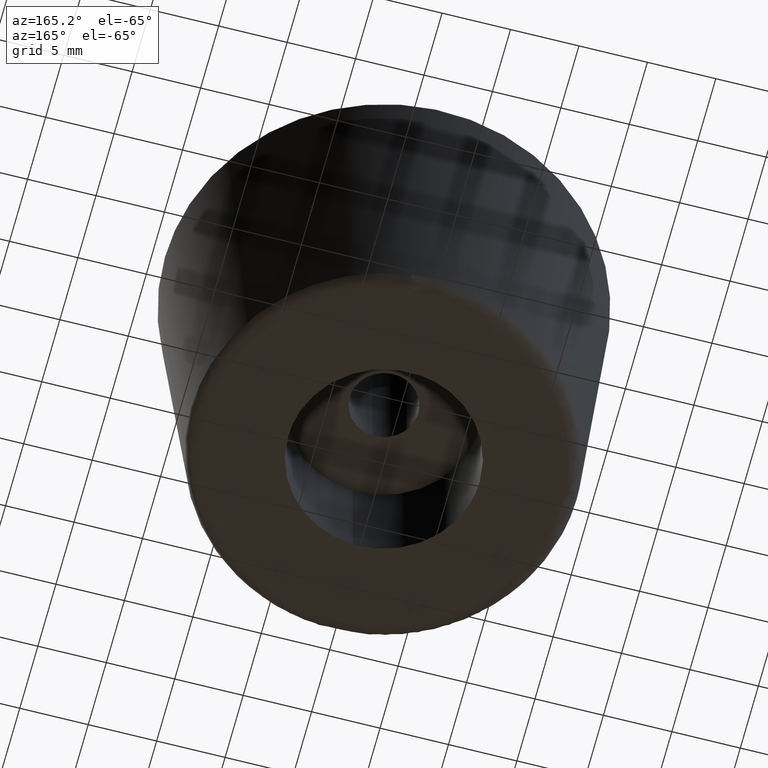
[diagram: clean part render]
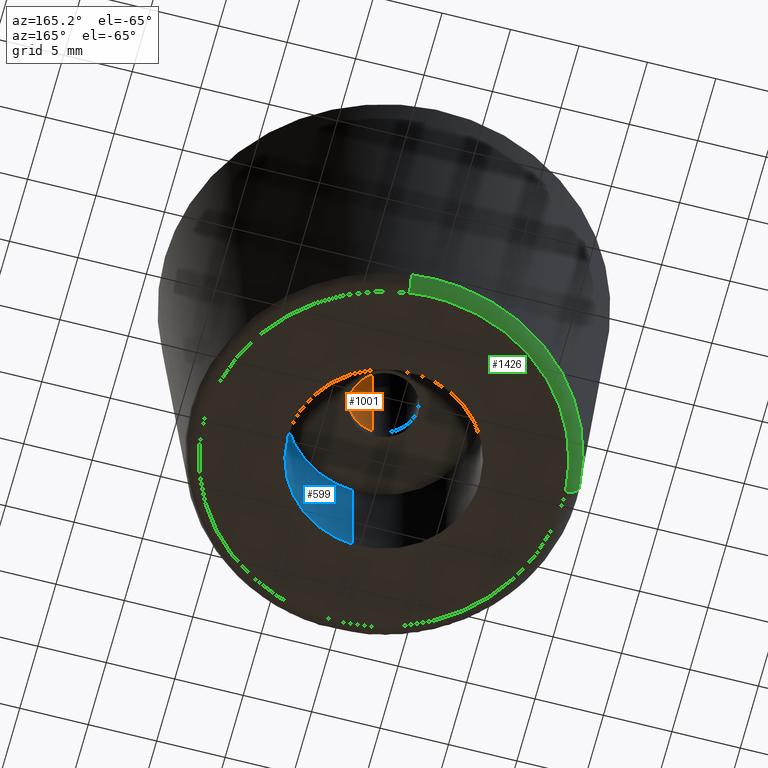
[diagram: same view with three faces highlighted in distinct colors, each labeled with its STEP entity id]
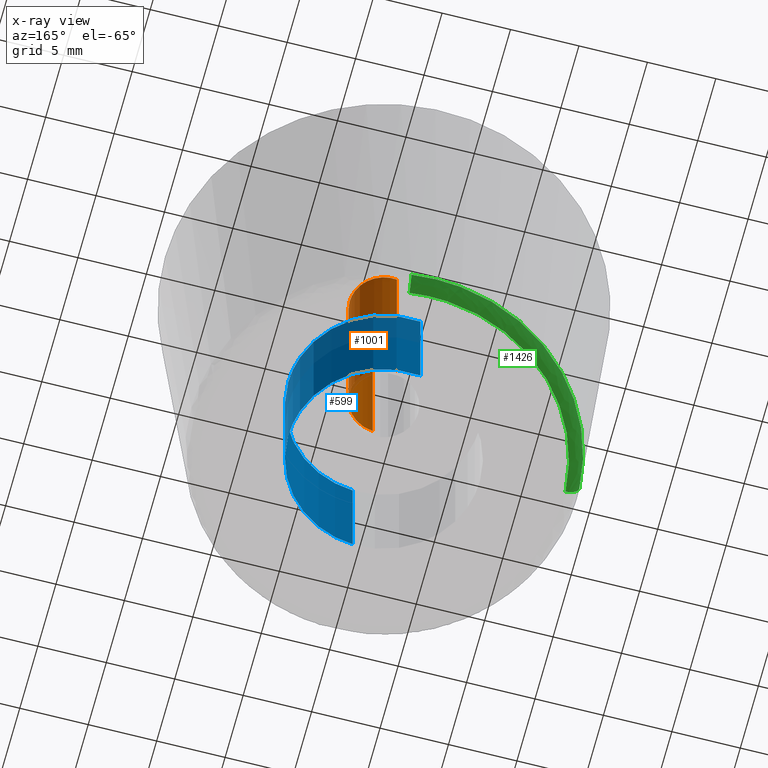
[diagram: x-ray of the same camera — body ghosted, the three highlighted faces saturated]
A machine part, auxiliary view with three faces highlighted in distinct colors.
The next image is the same camera in x-ray (body ghosted, the three faces saturated) — at least one of them is partly hidden behind the body in this view.
Their STEP definitions:

[orange] entity #1001 — the highlighted face is a freeform B-spline surface patch.
#899=CARTESIAN_POINT('',(-0.295085586641896,2.482523815909166,25.380000000000003));
#900=CARTESIAN_POINT('',(-0.224036821594944,2.490969038621514,25.380000000000006));
#901=CARTESIAN_POINT('',(-0.152621348837143,2.495336996054667,25.379999999999999));
#902=CARTESIAN_POINT('',(2.342715647217524,2.647958344891809,25.380000000000003));
#903=CARTESIAN_POINT('',(2.495336996054667,0.152621348837143,25.379999999999999));
#904=CARTESIAN_POINT('',(2.647958344891809,-2.342715647217524,25.380000000000003));
#905=CARTESIAN_POINT('',(0.152621348837143,-2.495336996054667,25.379999999999999));
#906=CARTESIAN_POINT('',(-0.295085586641896,2.482523815909166,9.410499999999997));
#907=CARTESIAN_POINT('',(-0.224036821594944,2.490969038621514,9.410499999999997));
#908=CARTESIAN_POINT('',(-0.152621348837143,2.495336996054667,9.410499999999995));
#909=CARTESIAN_POINT('',(2.342715647217524,2.647958344891809,9.410499999999995));
#910=CARTESIAN_POINT('',(2.495336996054667,0.152621348837143,9.410499999999995));
#911=CARTESIAN_POINT('',(2.647958344891809,-2.342715647217524,9.410499999999995));
#912=CARTESIAN_POINT('',(0.152621348837143,-2.495336996054667,9.410499999999995));
#920=(BOUNDED_SURFACE()B_SPLINE_SURFACE(2,1,((#899,#906),(#900,#907),(#901,#908),(#902,#909),(#903,#910),(#904,#911),(#905,#912)),.UNSPECIFIED.,.F.,.F.,.U.)B_SPLINE_SURFACE_WITH_KNOTS((3,2,2,3),(2,2),(0.0,0.165685424949238,4.307821048680188,8.449956672411137),(0.0,15.969500000000011),.UNSPECIFIED.)GEOMETRIC_REPRESENTATION_ITEM()RATIONAL_B_SPLINE_SURFACE(((0.977505800795127,0.977505800795127),(0.988284271247462,0.988284271247462),(1.0,1.0),(0.707106781186548,0.707106781186548),(1.0,1.0),(0.707106781186548,0.707106781186548),(1.0,1.0)))REPRESENTATION_ITEM('')SURFACE());
#921=CARTESIAN_POINT('',(-0.295085586690287,2.482523815903414,25.0));
#922=VERTEX_POINT('',#921);
#923=CARTESIAN_POINT('',(2.500000000000000,0.0,25.0));
#924=VERTEX_POINT('',#923);
#925=CARTESIAN_POINT('',(-0.295085586690287,2.482523815903414,24.999999999999993));
#926=CARTESIAN_POINT('',(-0.148060299178678,2.500000000000000,25.000000000000004));
#927=CARTESIAN_POINT('',(0.0,2.500000000000000,25.0));
#928=CARTESIAN_POINT('',(2.500000000000000,2.500000000000000,25.0));
#929=CARTESIAN_POINT('',(2.500000000000000,0.0,25.0));
#937=(BOUNDED_CURVE()B_SPLINE_CURVE(2,(#925,#926,#927,#928,#929),.UNSPECIFIED.,.F.,.U.)B_SPLINE_CURVE_WITH_KNOTS((3,2,3),(0.229562473509056,0.250000000000000,0.500000000000000),.UNSPECIFIED.)CURVE()GEOMETRIC_REPRESENTATION_ITEM()RATIONAL_B_SPLINE_CURVE((0.956026754174972,0.976055948325928,1.0,0.707106781186548,1.0))REPRESENTATION_ITEM(''));
#938=EDGE_CURVE('',#922,#924,#937,.T.);
#939=ORIENTED_EDGE('',*,*,#938,.F.);
#940=CARTESIAN_POINT('',(-0.295085586690287,2.482523815903414,9.799999999999999));
#941=VERTEX_POINT('',#940);
#942=CARTESIAN_POINT('',(-0.295085586690287,2.482523815903414,25.0));
#943=CARTESIAN_POINT('',(-0.295085586690287,2.482523815903414,9.799999999999999));
#944=QUASI_UNIFORM_CURVE('',1,(#942,#943),.UNSPECIFIED.,.F.,.U.);
#945=EDGE_CURVE('',#922,#941,#944,.T.);
#946=ORIENTED_EDGE('',*,*,#945,.T.);
#947=CARTESIAN_POINT('',(2.500000000000000,0.0,9.799999999999999));
#948=VERTEX_POINT('',#947);
#949=CARTESIAN_POINT('',(-0.295085586690287,2.482523815903414,9.799999999999999));
#950=CARTESIAN_POINT('',(-0.148060299178678,2.500000000000000,9.799999999999999));
#951=CARTESIAN_POINT('',(0.0,2.500000000000000,9.799999999999999));
#952=CARTESIAN_POINT('',(2.500000000000000,2.500000000000000,9.799999999999999));
#953=CARTESIAN_POINT('',(2.500000000000000,0.0,9.799999999999999));
#961=(BOUNDED_CURVE()B_SPLINE_CURVE(2,(#949,#950,#951,#952,#953),.UNSPECIFIED.,.F.,.U.)B_SPLINE_CURVE_WITH_KNOTS((3,2,3),(0.229562473509056,0.250000000000000,0.500000000000000),.UNSPECIFIED.)CURVE()GEOMETRIC_REPRESENTATION_ITEM()RATIONAL_B_SPLINE_CURVE((0.956026754174972,0.976055948325928,1.0,0.707106781186548,1.0))REPRESENTATION_ITEM(''));
#962=EDGE_CURVE('',#941,#948,#961,.T.);
#963=ORIENTED_EDGE('',*,*,#962,.T.);
#964=CARTESIAN_POINT('',(0.152621348895174,-2.495336996051118,9.799999999999997));
#965=VERTEX_POINT('',#964);
#966=CARTESIAN_POINT('',(2.500000000000000,0.0,9.799999999999999));
#967=CARTESIAN_POINT('',(2.500000000000000,-2.351765167154643,9.799999999999999));
#968=CARTESIAN_POINT('',(0.152621348895174,-2.495336996051119,9.799999999999997));
#976=(BOUNDED_CURVE()B_SPLINE_CURVE(2,(#966,#967,#968),.UNSPECIFIED.,.F.,.U.)B_SPLINE_CURVE_WITH_KNOTS((3,3),(0.500000000000000,0.739332962233942),.UNSPECIFIED.)CURVE()GEOMETRIC_REPRESENTATION_ITEM()RATIONAL_B_SPLINE_CURVE((1.0,0.719603993292569,0.976072041656001))REPRESENTATION_ITEM(''));
#977=EDGE_CURVE('',#948,#965,#976,.T.);
#978=ORIENTED_EDGE('',*,*,#977,.T.);
#979=CARTESIAN_POINT('',(0.152621348895174,-2.495336996051118,25.0));
#980=VERTEX_POINT('',#979);
#981=CARTESIAN_POINT('',(0.152621348895174,-2.495336996051118,25.0));
#982=CARTESIAN_POINT('',(0.152621348895174,-2.495336996051118,9.799999999999997));
#983=QUASI_UNIFORM_CURVE('',1,(#981,#982),.UNSPECIFIED.,.F.,.U.);
#984=EDGE_CURVE('',#980,#965,#983,.T.);
#985=ORIENTED_EDGE('',*,*,#984,.F.);
#986=CARTESIAN_POINT('',(2.500000000000000,0.0,25.0));
#987=CARTESIAN_POINT('',(2.500000000000000,-2.351765167154643,25.000000000000004));
#988=CARTESIAN_POINT('',(0.152621348895174,-2.495336996051119,25.000000000000004));
#996=(BOUNDED_CURVE()B_SPLINE_CURVE(2,(#986,#987,#988),.UNSPECIFIED.,.F.,.U.)B_SPLINE_CURVE_WITH_KNOTS((3,3),(0.500000000000000,0.739332962233942),.UNSPECIFIED.)CURVE()GEOMETRIC_REPRESENTATION_ITEM()RATIONAL_B_SPLINE_CURVE((1.0,0.719603993292569,0.976072041656001))REPRESENTATION_ITEM(''));
#997=EDGE_CURVE('',#924,#980,#996,.T.);
#998=ORIENTED_EDGE('',*,*,#997,.F.);
#999=EDGE_LOOP('',(#939,#946,#963,#978,#985,#998));
#1000=FACE_OUTER_BOUND('',#999,.T.);
#1001=ADVANCED_FACE('',(#1000),#920,.F.);

[blue] entity #599 — the highlighted face is a freeform B-spline surface patch.
#493=CARTESIAN_POINT('',(-0.929388897007004,6.938805832080081,9.225000000000003));
#494=CARTESIAN_POINT('',(-0.877668855653977,6.944953542988632,9.225000000000003));
#495=CARTESIAN_POINT('',(-0.627303100465844,6.974713308140240,9.225000000000003));
#496=CARTESIAN_POINT('',(-0.427339776743999,6.986943588953067,9.225000000000001));
#497=CARTESIAN_POINT('',(6.559603812209068,7.414283365697066,9.225000000000001));
#498=CARTESIAN_POINT('',(6.986943588953067,0.427339776743999,9.225000000000001));
#499=CARTESIAN_POINT('',(7.414283365697066,-6.559603812209068,9.225000000000001));
#500=CARTESIAN_POINT('',(0.377090994728546,-6.990016936120503,9.225000000000000));
#501=CARTESIAN_POINT('',(0.327140700341582,-6.993072027002495,9.224999999999998));
#502=CARTESIAN_POINT('',(-0.929388897007004,6.938805832080081,-0.230625000000002));
#503=CARTESIAN_POINT('',(-0.877668855653977,6.944953542988632,-0.230625000000002));
#504=CARTESIAN_POINT('',(-0.627303100465844,6.974713308140240,-0.230625000000002));
#505=CARTESIAN_POINT('',(-0.427339776743999,6.986943588953067,-0.230625000000002));
#506=CARTESIAN_POINT('',(6.559603812209068,7.414283365697066,-0.230625000000002));
#507=CARTESIAN_POINT('',(6.986943588953067,0.427339776743999,-0.230625000000002));
#508=CARTESIAN_POINT('',(7.414283365697066,-6.559603812209068,-0.230625000000002));
#509=CARTESIAN_POINT('',(0.377090994728546,-6.990016936120503,-0.230625000000002));
#510=CARTESIAN_POINT('',(0.327140700341582,-6.993072027002495,-0.230625000000002));
#518=(BOUNDED_SURFACE()B_SPLINE_SURFACE(2,1,((#493,#502),(#494,#503),(#495,#504),(#496,#505),(#497,#506),(#498,#507),(#499,#508),(#500,#509),(#501,#510)),.UNSPECIFIED.,.F.,.F.,.U.)B_SPLINE_SURFACE_WITH_KNOTS((3,1,2,2,1,3),(2,2),(0.0,0.118291174878799,0.582210364736666,12.180190111183320,23.778169857629980,23.896482544396800),(0.0,9.455625000000008),.UNSPECIFIED.)GEOMETRIC_REPRESENTATION_ITEM()RATIONAL_B_SPLINE_SURFACE(((0.972009162755240,0.972009162755240),(0.974757481775183,0.974757481775183),(0.988284271247462,0.988284271247462),(1.0,1.0),(0.707106781186548,0.707106781186548),(1.0,1.0),(0.707106781186548,0.707106781186548),(1.002987846539758,1.002987846539758),(1.005975693079516,1.005975693079516)))REPRESENTATION_ITEM('')SURFACE());
#519=CARTESIAN_POINT('',(-0.826232407674893,6.951067544518226,4.183897E-014));
#520=VERTEX_POINT('',#519);
#521=CARTESIAN_POINT('',(7.0,0.0,0.0));
#522=VERTEX_POINT('',#521);
#523=CARTESIAN_POINT('',(-0.826232407674893,6.951067544518226,4.183897E-014));
#524=CARTESIAN_POINT('',(-0.414565181859389,7.0,0.0));
#525=CARTESIAN_POINT('',(0.0,7.0,0.0));
#526=CARTESIAN_POINT('',(6.999999999999999,6.999999999999999,0.0));
#527=CARTESIAN_POINT('',(7.0,0.0,0.0));
#535=(BOUNDED_CURVE()B_SPLINE_CURVE(2,(#523,#524,#525,#526,#527),.UNSPECIFIED.,.F.,.U.)B_SPLINE_CURVE_WITH_KNOTS((3,2,3),(0.229562649420369,0.250000000000000,0.500000000000000),.UNSPECIFIED.)CURVE()GEOMETRIC_REPRESENTATION_ITEM()RATIONAL_B_SPLINE_CURVE((0.956027098968635,0.976056154418852,1.0,0.707106781186547,1.0))REPRESENTATION_ITEM(''));
#536=EDGE_CURVE('',#520,#522,#535,.T.);
#537=ORIENTED_EDGE('',*,*,#536,.T.);
#538=CARTESIAN_POINT('',(0.427328470493930,-6.986944280454582,2.503553E-014));
#539=VERTEX_POINT('',#538);
#540=CARTESIAN_POINT('',(7.0,0.0,0.0));
#541=CARTESIAN_POINT('',(7.000000000000001,-6.584953143992288,0.0));
#542=CARTESIAN_POINT('',(0.427328470493929,-6.986944280454582,2.503553E-014));
#550=(BOUNDED_CURVE()B_SPLINE_CURVE(2,(#540,#541,#542),.UNSPECIFIED.,.F.,.U.)B_SPLINE_CURVE_WITH_KNOTS((3,3),(0.500000000000000,0.739333241456697),.UNSPECIFIED.)CURVE()GEOMETRIC_REPRESENTATION_ITEM()RATIONAL_B_SPLINE_CURVE((1.0,0.719603666162763,0.976072640084247))REPRESENTATION_ITEM(''));
#551=EDGE_CURVE('',#522,#539,#550,.T.);
#552=ORIENTED_EDGE('',*,*,#551,.T.);
#553=CARTESIAN_POINT('',(0.427328609956511,-6.986944271925134,9.0));
#554=VERTEX_POINT('',#553);
#555=CARTESIAN_POINT('',(0.427328609956511,-6.986944271925134,9.0));
#556=CARTESIAN_POINT('',(0.427328470493930,-6.986944280454582,2.503553E-014));
#557=QUASI_UNIFORM_CURVE('',1,(#555,#556),.UNSPECIFIED.,.F.,.U.);
#558=EDGE_CURVE('',#554,#539,#557,.T.);
#559=ORIENTED_EDGE('',*,*,#558,.F.);
#560=CARTESIAN_POINT('',(7.0,0.0,9.0));
#561=VERTEX_POINT('',#560);
#562=CARTESIAN_POINT('',(7.0,0.0,9.0));
#563=CARTESIAN_POINT('',(7.0,-6.584953012308039,9.0));
#564=CARTESIAN_POINT('',(0.427328609956511,-6.986944271925134,9.0));
#572=(BOUNDED_CURVE()B_SPLINE_CURVE(2,(#562,#563,#564),.UNSPECIFIED.,.F.,.U.)B_SPLINE_CURVE_WITH_KNOTS((3,3),(0.500000000000000,0.739333238012583),.UNSPECIFIED.)CURVE()GEOMETRIC_REPRESENTATION_ITEM()RATIONAL_B_SPLINE_CURVE((1.0,0.719603670197793,0.976072632702837))REPRESENTATION_ITEM(''));
#573=EDGE_CURVE('',#561,#554,#572,.T.);
#574=ORIENTED_EDGE('',*,*,#573,.F.);
#575=CARTESIAN_POINT('',(-0.826232496864986,6.951067533916820,9.0));
#576=VERTEX_POINT('',#575);
#577=CARTESIAN_POINT('',(-0.826232496864986,6.951067533916821,9.0));
#578=CARTESIAN_POINT('',(-0.414565226925875,7.0,9.000000000000002));
#579=CARTESIAN_POINT('',(0.0,7.0,9.0));
#580=CARTESIAN_POINT('',(6.999999999999999,6.999999999999999,9.0));
#581=CARTESIAN_POINT('',(7.0,0.0,9.0));
#589=(BOUNDED_CURVE()B_SPLINE_CURVE(2,(#577,#578,#579,#580,#581),.UNSPECIFIED.,.F.,.U.)B_SPLINE_CURVE_WITH_KNOTS((3,2,3),(0.229562647251865,0.250000000000000,0.500000000000000),.UNSPECIFIED.)CURVE()GEOMETRIC_REPRESENTATION_ITEM()RATIONAL_B_SPLINE_CURVE((0.956027094718271,0.976056151878291,1.0,0.707106781186547,1.0))REPRESENTATION_ITEM(''));
#590=EDGE_CURVE('',#576,#561,#589,.T.);
#591=ORIENTED_EDGE('',*,*,#590,.F.);
#592=CARTESIAN_POINT('',(-0.826232496864986,6.951067533916820,9.0));
#593=CARTESIAN_POINT('',(-0.826232407674893,6.951067544518226,4.183897E-014));
#594=QUASI_UNIFORM_CURVE('',1,(#592,#593),.UNSPECIFIED.,.F.,.U.);
#595=EDGE_CURVE('',#576,#520,#594,.T.);
#596=ORIENTED_EDGE('',*,*,#595,.T.);
#597=EDGE_LOOP('',(#537,#552,#559,#574,#591,#596));
#598=FACE_OUTER_BOUND('',#597,.T.);
#599=ADVANCED_FACE('',(#598),#518,.F.);

[green] entity #1426 — the highlighted face is a freeform B-spline surface patch.
#851=CARTESIAN_POINT('',(1.685557816020682,13.972318159594570,0.920254999860153));
#852=VERTEX_POINT('',#851);
#866=CARTESIAN_POINT('',(-14.045848925735269,0.883689911467597,0.920254999915077));
#867=VERTEX_POINT('',#866);
#868=CARTESIAN_POINT('',(-14.045848925735273,0.883689911467597,0.920254999915077));
#869=CARTESIAN_POINT('',(-13.216008863104529,14.073619999999995,0.920255000000000));
#870=CARTESIAN_POINT('',(0.0,14.073620000000000,0.920255000000000));
#871=CARTESIAN_POINT('',(0.845823022775166,14.073619999999996,0.920255000000000));
#872=CARTESIAN_POINT('',(1.685557816020683,13.972318159594575,0.920254999860153));
#880=(BOUNDED_CURVE()B_SPLINE_CURVE(2,(#868,#869,#870,#871,#872),.UNSPECIFIED.,.F.,.U.)B_SPLINE_CURVE_WITH_KNOTS((3,2,3),(0.010968089259877,0.250000000000000,0.270732403713714),.UNSPECIFIED.)CURVE()GEOMETRIC_REPRESENTATION_ITEM()RATIONAL_B_SPLINE_CURVE((0.975427680453503,0.719956697056782,1.0,0.975710478170201,0.955449597721109))REPRESENTATION_ITEM(''));
#881=EDGE_CURVE('',#867,#852,#880,.T.);
#1300=CARTESIAN_POINT('',(1.566172056542565,12.982677935015291,2.068648E-016));
#1301=VERTEX_POINT('',#1300);
#1317=CARTESIAN_POINT('',(1.685557816020682,13.972318159594570,0.920254999860153));
#1318=CARTESIAN_POINT('',(1.676740532849097,13.899227883718893,1.186614E-009));
#1319=CARTESIAN_POINT('',(1.566172056542564,12.982677935015300,2.068648E-016));
#1327=(BOUNDED_CURVE()B_SPLINE_CURVE(2,(#1317,#1318,#1319),.UNSPECIFIED.,.F.,.U.)B_SPLINE_CURVE_WITH_KNOTS((3,3),(-1.719615009018358,-0.275668313336699),.UNSPECIFIED.)CURVE()GEOMETRIC_REPRESENTATION_ITEM()RATIONAL_B_SPLINE_CURVE((0.870611685968678,0.640245262247482,0.872121610229976))REPRESENTATION_ITEM(''));
#1328=EDGE_CURVE('',#852,#1301,#1327,.T.);
#1335=CARTESIAN_POINT('',(-13.051000617162460,0.821099361180043,1.866568E-016));
#1336=VERTEX_POINT('',#1335);
#1337=CARTESIAN_POINT('',(-14.045848925735269,0.883689911467597,0.920254999915077));
#1338=CARTESIAN_POINT('',(-13.972374004810872,0.879067261256220,8.390921E-010));
#1339=CARTESIAN_POINT('',(-13.051000617162462,0.821099361180043,1.866568E-016));
#1347=(BOUNDED_CURVE()B_SPLINE_CURVE(2,(#1337,#1338,#1339),.UNSPECIFIED.,.F.,.U.)B_SPLINE_CURVE_WITH_KNOTS((3,3),(-1.719615009135546,-0.275668312935696),.UNSPECIFIED.)CURVE()GEOMETRIC_REPRESENTATION_ITEM()RATIONAL_B_SPLINE_CURVE((0.890646055806414,0.654978478535776,0.892190726284551))REPRESENTATION_ITEM(''));
#1348=EDGE_CURVE('',#867,#1336,#1347,.T.);
#1383=CARTESIAN_POINT('',(-14.048944101088969,0.883884643385137,0.987084493109651));
#1384=CARTESIAN_POINT('',(-13.165059457703824,14.932828744474101,0.987084493109651));
#1385=CARTESIAN_POINT('',(0.883884643385136,14.048944101088969,0.987084493109651));
#1386=CARTESIAN_POINT('',(1.285958999729697,14.023647726748319,0.987084493109651));
#1387=CARTESIAN_POINT('',(1.685928478097896,13.975397224589832,0.987084493109651));
#1388=CARTESIAN_POINT('',(-14.035340179624352,0.883028757192846,-0.068211435999558));
#1389=CARTESIAN_POINT('',(-13.152311422431506,14.918368936817199,-0.068211435999558));
#1390=CARTESIAN_POINT('',(0.883028757192845,14.035340179624352,-0.068211435999558));
#1391=CARTESIAN_POINT('',(1.284713775525433,14.010068300355186,-0.068211435999558));
#1392=CARTESIAN_POINT('',(1.684295954084278,13.961864520287486,-0.068211435999558));
#1393=CARTESIAN_POINT('',(-12.984387557375751,0.816908422664725,0.002229918086899));
#1394=CARTESIAN_POINT('',(-12.167479134711030,13.801295980040475,0.002229918086899));
#1395=CARTESIAN_POINT('',(0.816908422664724,12.984387557375751,0.002229918086899));
#1396=CARTESIAN_POINT('',(1.188515657492822,12.961008011847488,0.002229918086899));
#1397=CARTESIAN_POINT('',(1.558177511144269,12.916413683949546,0.002229918086899));
#1405=(BOUNDED_SURFACE()B_SPLINE_SURFACE(2,2,((#1383,#1388,#1393),(#1384,#1389,#1394),(#1385,#1390,#1395),(#1386,#1391,#1396),(#1387,#1392,#1397)),.UNSPECIFIED.,.F.,.F.,.U.)B_SPLINE_SURFACE_WITH_KNOTS((3,2,3),(3,3),(0.0,23.323075496612908,24.255997626772700),(0.0,1.720334482174728),.UNSPECIFIED.)GEOMETRIC_REPRESENTATION_ITEM()RATIONAL_B_SPLINE_SURFACE(((0.915369082024626,0.630178202104109,0.917068254048842),(0.647263685188118,0.445603280063762,0.648465181248844),(0.915369082024626,0.630178202104109,0.917068254048842),(0.904644876378574,0.622795212263469,0.906324141383236),(0.894778606366015,0.616002861046804,0.896439556911168)))REPRESENTATION_ITEM('')SURFACE());
#1406=CARTESIAN_POINT('',(-13.051000617162464,0.821099361180043,1.866568E-016));
#1407=CARTESIAN_POINT('',(-12.279936993079630,13.076804703681240,0.0));
#1408=CARTESIAN_POINT('',(0.0,13.076804703681240,0.0));
#1409=CARTESIAN_POINT('',(0.785914532518624,13.076804703681240,0.0));
#1410=CARTESIAN_POINT('',(1.566172056542565,12.982677935015296,2.068648E-016));
#1418=(BOUNDED_CURVE()B_SPLINE_CURVE(2,(#1406,#1407,#1408,#1409,#1410),.UNSPECIFIED.,.F.,.U.)B_SPLINE_CURVE_WITH_KNOTS((3,2,3),(0.010968089260269,0.250000000000000,0.270732403714513),.UNSPECIFIED.)CURVE()GEOMETRIC_REPRESENTATION_ITEM()RATIONAL_B_SPLINE_CURVE((0.975427680452667,0.719956697057241,1.0,0.975710478169265,0.955449597719549))REPRESENTATION_ITEM(''));
#1419=EDGE_CURVE('',#1336,#1301,#1418,.T.);
#1420=ORIENTED_EDGE('',*,*,#1419,.F.);
#1421=ORIENTED_EDGE('',*,*,#1348,.F.);
#1422=ORIENTED_EDGE('',*,*,#881,.T.);
#1423=ORIENTED_EDGE('',*,*,#1328,.T.);
#1424=EDGE_LOOP('',(#1420,#1421,#1422,#1423));
#1425=FACE_OUTER_BOUND('',#1424,.T.);
#1426=ADVANCED_FACE('',(#1425),#1405,.T.);